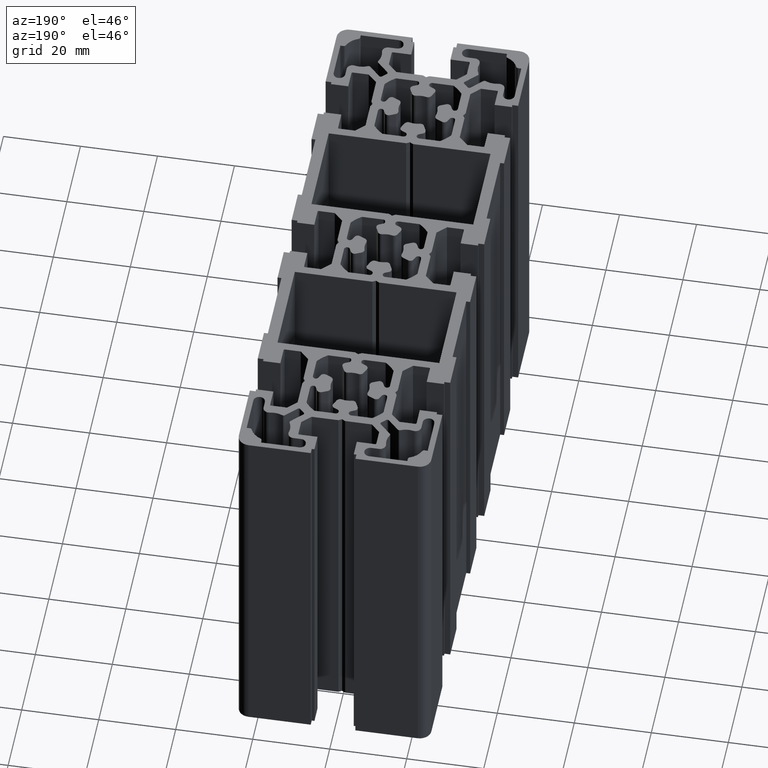
[diagram: clean part render]
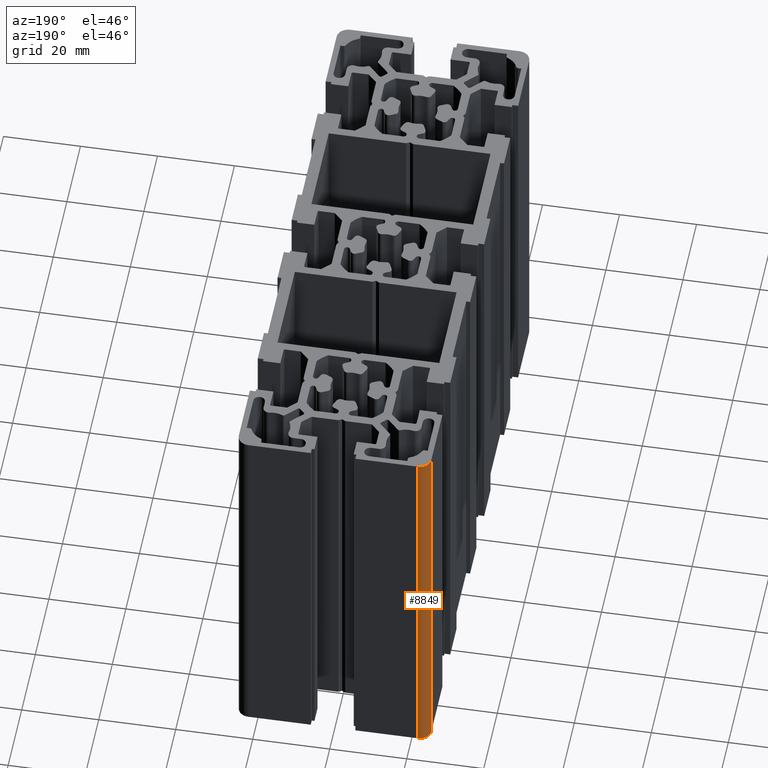
[diagram: same view with one face highlighted and labeled with its STEP entity id]
A machine part, auxiliary view. The second image highlights one B-rep face of the part: STEP entity #8849.
In plain terms, the highlighted cylindrical surface (edge-blend (fillet) strip) has radius 3 mm, axis along (-0, -0, -1).
Its self-contained STEP definition (entity closure, byte-faithful):
#96 = FACE_OUTER_BOUND ( 'NONE', #8798, .T. ) ;
#97 = DIRECTION ( 'NONE',  ( -0.0000000000000000000, -0.0000000000000000000, -1.000000000000000000 ) ) ;
#98 = VECTOR ( 'NONE', #97, 1000.000000000000000 ) ;
#99 = CARTESIAN_POINT ( 'NONE',  ( -24.99999999999994000, 72.00000000000001400, 100.0000000000000000 ) ) ;
#108 = CYLINDRICAL_SURFACE ( 'NONE', #114, 2.999999999999988900 ) ;
#114 = AXIS2_PLACEMENT_3D ( 'NONE', #147, #146, #145 ) ;
#120 = LINE ( 'NONE', #99, #98 ) ;
#140 = DIRECTION ( 'NONE',  ( -0.0000000000000000000, -0.0000000000000000000, -1.000000000000000000 ) ) ;
#141 = VECTOR ( 'NONE', #140, 1000.000000000000000 ) ;
#142 = CARTESIAN_POINT ( 'NONE',  ( -22.00000000000000000, 75.00000000000000000, 100.0000000000000000 ) ) ;
#143 = LINE ( 'NONE', #142, #141 ) ;
#145 = DIRECTION ( 'NONE',  ( -1.000000000000000000, 0.0000000000000000000, 0.0000000000000000000 ) ) ;
#146 = DIRECTION ( 'NONE',  ( -0.0000000000000000000, -0.0000000000000000000, -1.000000000000000000 ) ) ;
#147 = CARTESIAN_POINT ( 'NONE',  ( -21.99999999999995000, 72.00000000000001400, 100.0000000000000000 ) ) ;
#591 = CARTESIAN_POINT ( 'NONE',  ( -22.00000000000000000, 75.00000000000000000, 100.0000000000000000 ) ) ;
#598 = CARTESIAN_POINT ( 'NONE',  ( -24.99999999999994000, 72.00000000000001400, 100.0000000000000000 ) ) ;
#698 = CARTESIAN_POINT ( 'NONE',  ( -21.99999999999995000, 72.00000000000001400, 100.0000000000000000 ) ) ;
#701 = AXIS2_PLACEMENT_3D ( 'NONE', #698, #742, #741 ) ;
#702 = CIRCLE ( 'NONE', #701, 2.999999999999988900 ) ;
#741 = DIRECTION ( 'NONE',  ( 1.000000000000000000, 0.0000000000000000000, 0.0000000000000000000 ) ) ;
#742 = DIRECTION ( 'NONE',  ( 0.0000000000000000000, 0.0000000000000000000, 1.000000000000000000 ) ) ;
#7878 = EDGE_CURVE ( 'NONE', #7881, #7882, #15674, .T. ) ;
#7881 = VERTEX_POINT ( 'NONE', #15680 ) ;
#7882 = VERTEX_POINT ( 'NONE', #15722 ) ;
#8796 = ORIENTED_EDGE ( 'NONE', *, *, #8847, .F. ) ;
#8798 = EDGE_LOOP ( 'NONE', ( #8851, #8796, #8852, #8833 ) ) ;
#8833 = ORIENTED_EDGE ( 'NONE', *, *, #8850, .T. ) ;
#8847 = EDGE_CURVE ( 'NONE', #9101, #7882, #120, .T. ) ;
#8849 = ADVANCED_FACE ( 'NONE', ( #96 ), #108, .T. ) ;
#8850 = EDGE_CURVE ( 'NONE', #9109, #7881, #143, .T. ) ;
#8851 = ORIENTED_EDGE ( 'NONE', *, *, #7878, .T. ) ;
#8852 = ORIENTED_EDGE ( 'NONE', *, *, #9174, .F. ) ;
#9101 = VERTEX_POINT ( 'NONE', #598 ) ;
#9109 = VERTEX_POINT ( 'NONE', #591 ) ;
#9174 = EDGE_CURVE ( 'NONE', #9109, #9101, #702, .T. ) ;
#15674 = CIRCLE ( 'NONE', #15727, 2.999999999999988900 ) ;
#15680 = CARTESIAN_POINT ( 'NONE',  ( -22.00000000000000000, 75.00000000000000000, 0.0000000000000000000 ) ) ;
#15722 = CARTESIAN_POINT ( 'NONE',  ( -24.99999999999994000, 72.00000000000001400, 0.0000000000000000000 ) ) ;
#15723 = DIRECTION ( 'NONE',  ( 1.000000000000000000, 0.0000000000000000000, 0.0000000000000000000 ) ) ;
#15724 = DIRECTION ( 'NONE',  ( 0.0000000000000000000, 0.0000000000000000000, 1.000000000000000000 ) ) ;
#15725 = CARTESIAN_POINT ( 'NONE',  ( -21.99999999999995000, 72.00000000000001400, 0.0000000000000000000 ) ) ;
#15727 = AXIS2_PLACEMENT_3D ( 'NONE', #15725, #15724, #15723 ) ;